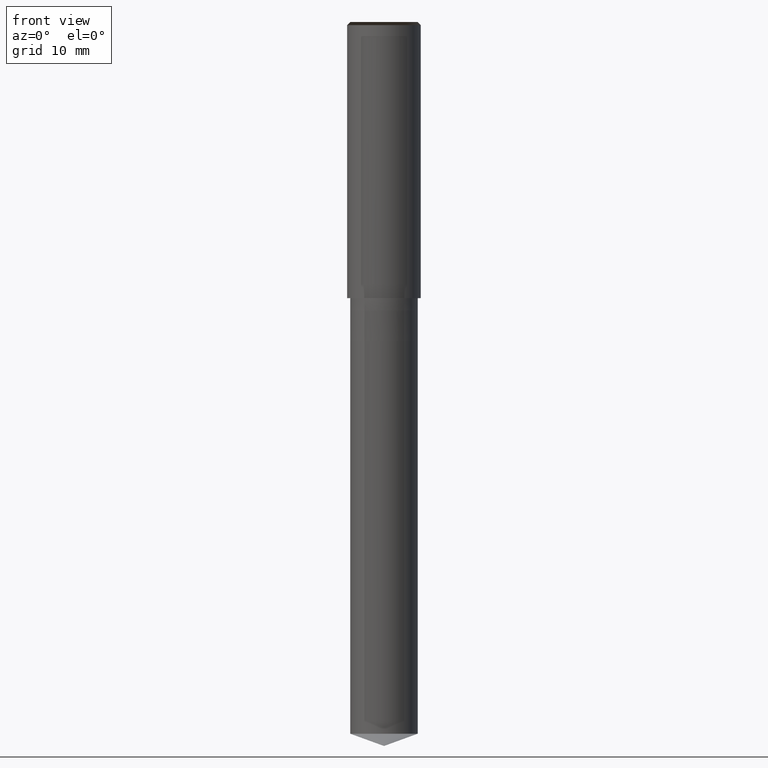
[diagram: clean part render]
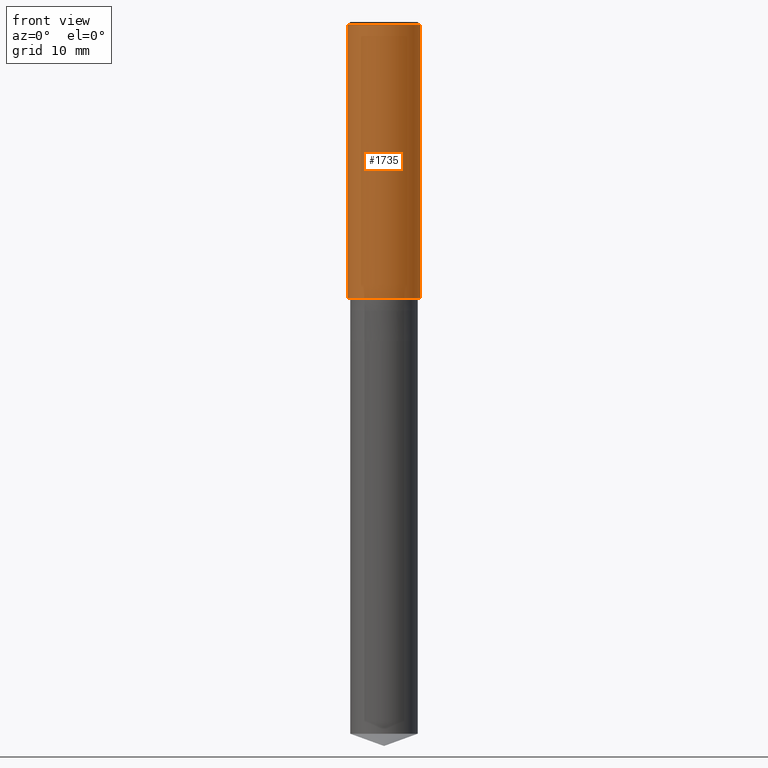
[diagram: same view with one face highlighted and labeled with its STEP entity id]
A machine part, front view. The second image highlights one B-rep face of the part: STEP entity #1735.
In plain terms, the highlighted face is a freeform B-spline surface patch.
Its self-contained STEP definition (entity closure, byte-faithful):
#1364=CARTESIAN_POINT('',(6.0,0.0,0.0));
#1368=CARTESIAN_POINT('',(-6.0,0.0,0.0));
#1369=CARTESIAN_POINT('',(6.0,0.0,44.5));
#1373=CARTESIAN_POINT('',(-6.0,0.0,44.5));
#1386=CARTESIAN_POINT('',(-6.0,-6.0,0.0));
#1387=CARTESIAN_POINT('',(0.0,-6.0,0.0));
#1388=CARTESIAN_POINT('',(6.0,-6.0,0.0));
#1389=CARTESIAN_POINT('',(-6.0,-6.0,44.5));
#1390=CARTESIAN_POINT('',(0.0,-6.0,44.5));
#1391=CARTESIAN_POINT('',(6.0,-6.0,44.5));
#1716=(
BOUNDED_SURFACE()
B_SPLINE_SURFACE(1,2,(
(#1368,#1386,#1387,#1388,#1364),
(#1373,#1389,#1390,#1391,#1369)
), .UNSPECIFIED.,.F.,.F.,.F.)
B_SPLINE_SURFACE_WITH_KNOTS((2,2),(3,2,3),(
0.0,1.0),(
0.0,0.5,1.0), .UNSPECIFIED.)
GEOMETRIC_REPRESENTATION_ITEM()
RATIONAL_B_SPLINE_SURFACE(((1.0,0.707106781187,1.0,0.707106781187,1.0),
(1.0,0.707106781187,1.0,0.707106781187,1.0)
))
REPRESENTATION_ITEM('')
SURFACE()
);
#1717=(
BOUNDED_CURVE()
B_SPLINE_CURVE(2,(#1364,#1388,#1387,#1386,#1368),.UNSPECIFIED.,.F.,.F.)
B_SPLINE_CURVE_WITH_KNOTS((3,2,3),
(0.0,0.5,1.0),.UNSPECIFIED.)
CURVE()
GEOMETRIC_REPRESENTATION_ITEM()
RATIONAL_B_SPLINE_CURVE((1.0,0.707106781187,1.0,0.707106781187,1.0))
REPRESENTATION_ITEM('')
);
#1718=(
BOUNDED_CURVE()
B_SPLINE_CURVE(1,(#1368,#1373),.UNSPECIFIED.,.F.,.F.)
B_SPLINE_CURVE_WITH_KNOTS((2,2),
(0.0,1.0),.UNSPECIFIED.)
CURVE()
GEOMETRIC_REPRESENTATION_ITEM()
RATIONAL_B_SPLINE_CURVE((1.0,1.0))
REPRESENTATION_ITEM('')
);
#1719=(
BOUNDED_CURVE()
B_SPLINE_CURVE(2,(#1373,#1389,#1390,#1391,#1369),.UNSPECIFIED.,.F.,.F.)
B_SPLINE_CURVE_WITH_KNOTS((3,2,3),
(0.0,0.5,1.0),.UNSPECIFIED.)
CURVE()
GEOMETRIC_REPRESENTATION_ITEM()
RATIONAL_B_SPLINE_CURVE((1.0,0.707106781187,1.0,0.707106781187,1.0))
REPRESENTATION_ITEM('')
);
#1720=(
BOUNDED_CURVE()
B_SPLINE_CURVE(1,(#1369,#1364),.UNSPECIFIED.,.F.,.F.)
B_SPLINE_CURVE_WITH_KNOTS((2,2),
(0.0,1.0),.UNSPECIFIED.)
CURVE()
GEOMETRIC_REPRESENTATION_ITEM()
RATIONAL_B_SPLINE_CURVE((1.0,1.0))
REPRESENTATION_ITEM('')
);
#1721=VERTEX_POINT('',#1364);
#1722=VERTEX_POINT('',#1368);
#1723=VERTEX_POINT('',#1369);
#1724=VERTEX_POINT('',#1373);
#1725=EDGE_CURVE('',#1721,#1722,#1717,.T.);
#1726=EDGE_CURVE('',#1722,#1724,#1718,.T.);
#1727=EDGE_CURVE('',#1724,#1723,#1719,.T.);
#1728=EDGE_CURVE('',#1723,#1721,#1720,.T.);
#1729=ORIENTED_EDGE('',*,*,#1725,.T.);
#1730=ORIENTED_EDGE('',*,*,#1726,.T.);
#1731=ORIENTED_EDGE('',*,*,#1727,.T.);
#1732=ORIENTED_EDGE('',*,*,#1728,.T.);
#1733=EDGE_LOOP('',(#1729,#1730,#1731,#1732));
#1734=FACE_OUTER_BOUND('',#1733,.T.);
#1735=ADVANCED_FACE('',(#1734),#1716,.T.);